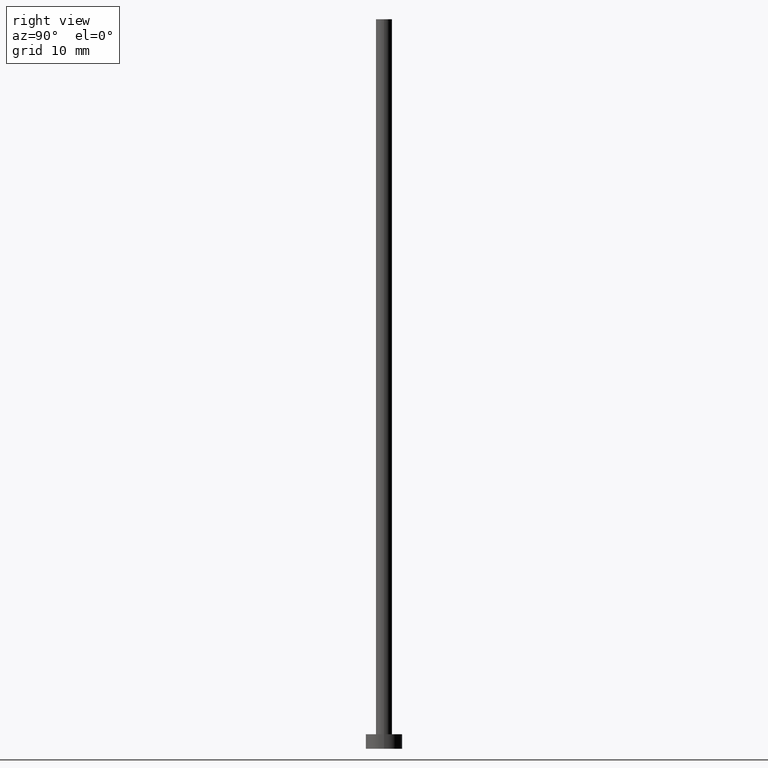
[diagram: clean part render]
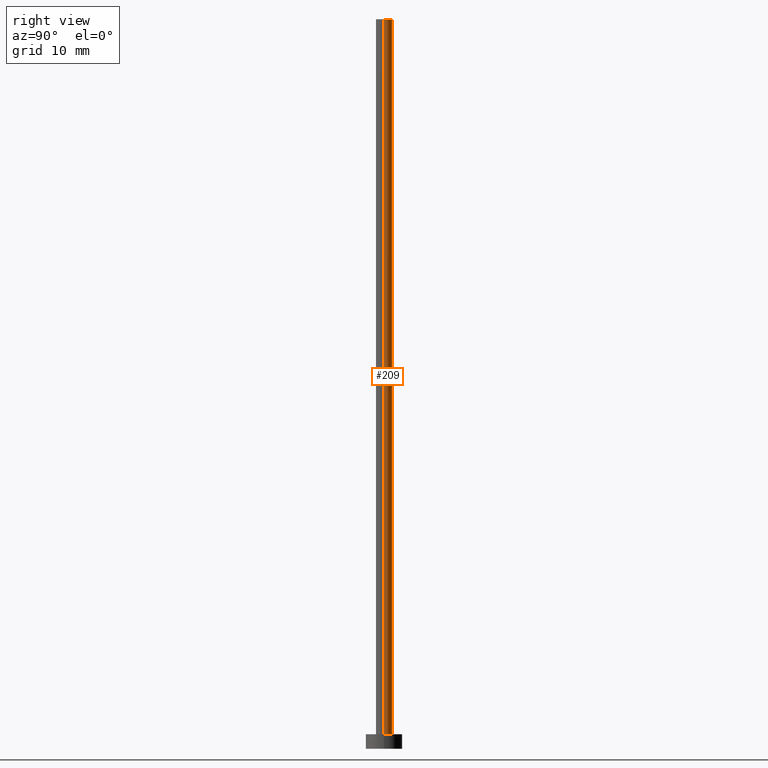
[diagram: same view with one face highlighted and labeled with its STEP entity id]
A machine part, right view. The second image highlights one B-rep face of the part: STEP entity #209.
In plain terms, the highlighted cylindrical surface (edge-blend (fillet) strip) has radius 1.1 mm, axis along (-0, -0, -1).
Its self-contained STEP definition (entity closure, byte-faithful):
#2 = EDGE_CURVE ( 'NONE', #87, #190, #108, .T. ) ;
#6 = DIRECTION ( 'NONE',  ( -0.000000000000000000, -0.000000000000000000, -1.000000000000000000 ) ) ;
#13 = VERTEX_POINT ( 'NONE', #60 ) ;
#19 = CARTESIAN_POINT ( 'NONE',  ( 0.000000000000000000, 0.000000000000000000, 100.0000000000000000 ) ) ;
#21 = EDGE_CURVE ( 'NONE', #13, #127, #122, .T. ) ;
#29 = EDGE_CURVE ( 'NONE', #127, #190, #128, .T. ) ;
#36 = AXIS2_PLACEMENT_3D ( 'NONE', #19, #168, #149 ) ;
#53 = FACE_OUTER_BOUND ( 'NONE', #159, .T. ) ;
#57 = DIRECTION ( 'NONE',  ( 1.000000000000000000, 0.000000000000000000, 0.000000000000000000 ) ) ;
#60 = CARTESIAN_POINT ( 'NONE',  ( 1.100000000000000089, 1.347111479062088503E-16, 100.0000000000000000 ) ) ;
#74 = AXIS2_PLACEMENT_3D ( 'NONE', #77, #126, #222 ) ;
#77 = CARTESIAN_POINT ( 'NONE',  ( 0.000000000000000000, 0.000000000000000000, 2.000000000000000000 ) ) ;
#80 = VECTOR ( 'NONE', #103, 1000.000000000000000 ) ;
#87 = VERTEX_POINT ( 'NONE', #215 ) ;
#88 = CARTESIAN_POINT ( 'NONE',  ( -1.100000000000000089, 0.000000000000000000, 100.0000000000000000 ) ) ;
#99 = LINE ( 'NONE', #173, #115 ) ;
#103 = DIRECTION ( 'NONE',  ( -0.000000000000000000, -0.000000000000000000, -1.000000000000000000 ) ) ;
#108 = CIRCLE ( 'NONE', #74, 1.100000000000000089 ) ;
#115 = VECTOR ( 'NONE', #6, 1000.000000000000000 ) ;
#122 = CIRCLE ( 'NONE', #207, 1.100000000000000089 ) ;
#126 = DIRECTION ( 'NONE',  ( 0.000000000000000000, 0.000000000000000000, 1.000000000000000000 ) ) ;
#127 = VERTEX_POINT ( 'NONE', #88 ) ;
#128 = LINE ( 'NONE', #206, #80 ) ;
#137 = CARTESIAN_POINT ( 'NONE',  ( -1.100000000000000089, 0.000000000000000000, 2.000000000000000000 ) ) ;
#149 = DIRECTION ( 'NONE',  ( -1.000000000000000000, 0.000000000000000000, 0.000000000000000000 ) ) ;
#159 = EDGE_LOOP ( 'NONE', ( #180, #239, #192, #232 ) ) ;
#163 = CYLINDRICAL_SURFACE ( 'NONE', #36, 1.100000000000000089 ) ;
#168 = DIRECTION ( 'NONE',  ( -0.000000000000000000, -0.000000000000000000, -1.000000000000000000 ) ) ;
#173 = CARTESIAN_POINT ( 'NONE',  ( 1.100000000000000089, 1.347111479062088503E-16, 100.0000000000000000 ) ) ;
#176 = EDGE_CURVE ( 'NONE', #13, #87, #99, .T. ) ;
#180 = ORIENTED_EDGE ( 'NONE', *, *, #21, .F. ) ;
#190 = VERTEX_POINT ( 'NONE', #137 ) ;
#192 = ORIENTED_EDGE ( 'NONE', *, *, #2, .T. ) ;
#203 = CARTESIAN_POINT ( 'NONE',  ( 0.000000000000000000, 0.000000000000000000, 100.0000000000000000 ) ) ;
#206 = CARTESIAN_POINT ( 'NONE',  ( -1.100000000000000089, 0.000000000000000000, 100.0000000000000000 ) ) ;
#207 = AXIS2_PLACEMENT_3D ( 'NONE', #203, #246, #57 ) ;
#209 = ADVANCED_FACE ( 'NONE', ( #53 ), #163, .T. ) ;
#215 = CARTESIAN_POINT ( 'NONE',  ( 1.100000000000000089, 1.347111479062088503E-16, 2.000000000000000000 ) ) ;
#222 = DIRECTION ( 'NONE',  ( 1.000000000000000000, 0.000000000000000000, 0.000000000000000000 ) ) ;
#232 = ORIENTED_EDGE ( 'NONE', *, *, #29, .F. ) ;
#239 = ORIENTED_EDGE ( 'NONE', *, *, #176, .T. ) ;
#246 = DIRECTION ( 'NONE',  ( 0.000000000000000000, 0.000000000000000000, 1.000000000000000000 ) ) ;